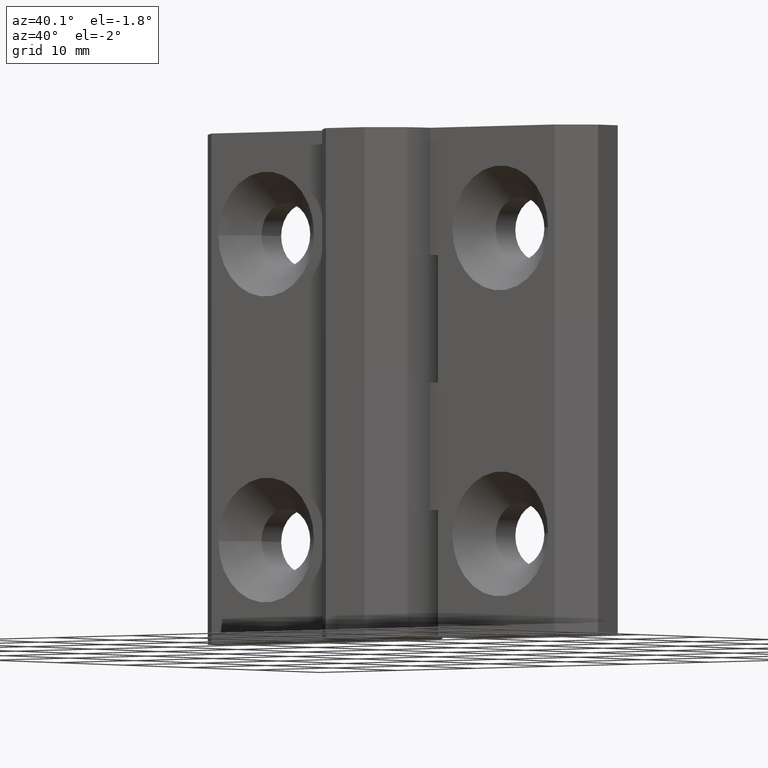
[diagram: clean part render]
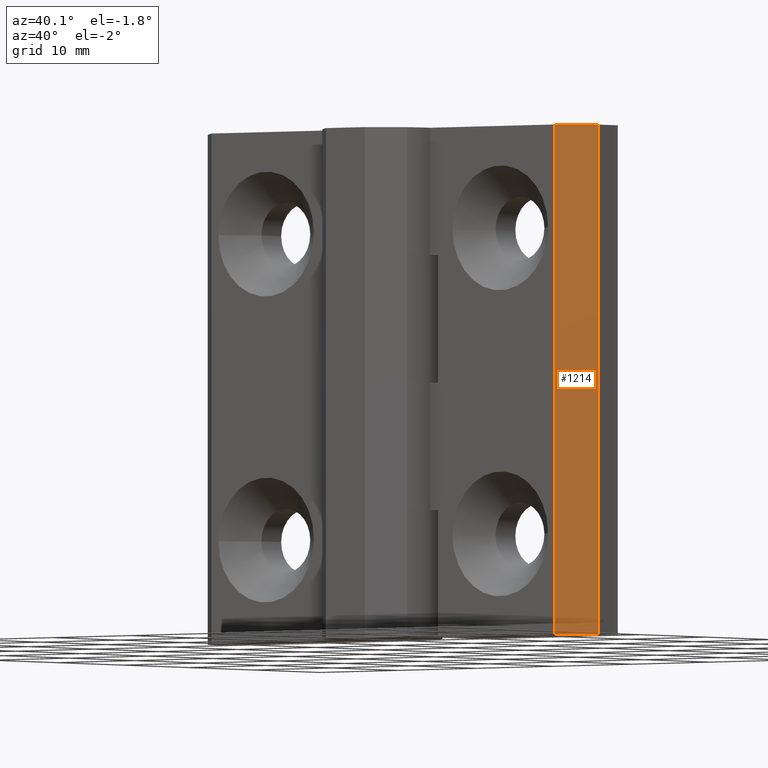
[diagram: same view with one face highlighted and labeled with its STEP entity id]
A machine part, auxiliary view. The second image highlights one B-rep face of the part: STEP entity #1214.
In plain terms, the highlighted planar face has unit normal (0.7071, -0.7071, 0).
Its self-contained STEP definition (entity closure, byte-faithful):
#159=FACE_OUTER_BOUND('',#240,.T.);
#240=EDGE_LOOP('',(#970,#971,#972,#973));
#315=LINE('',#1767,#437);
#351=LINE('',#1874,#473);
#353=LINE('',#1881,#475);
#354=LINE('',#1883,#476);
#437=VECTOR('',#1407,4.24264068711929);
#473=VECTOR('',#1513,50.);
#475=VECTOR('',#1523,4.24264068711929);
#476=VECTOR('',#1526,50.);
#555=VERTEX_POINT('',#1764);
#556=VERTEX_POINT('',#1766);
#592=VERTEX_POINT('',#1872);
#593=VERTEX_POINT('',#1879);
#676=EDGE_CURVE('',#555,#556,#315,.T.);
#729=EDGE_CURVE('',#592,#555,#351,.T.);
#731=EDGE_CURVE('',#593,#592,#353,.T.);
#732=EDGE_CURVE('',#556,#593,#354,.T.);
#970=ORIENTED_EDGE('',*,*,#732,.F.);
#971=ORIENTED_EDGE('',*,*,#676,.F.);
#972=ORIENTED_EDGE('',*,*,#729,.F.);
#973=ORIENTED_EDGE('',*,*,#731,.F.);
#1160=PLANE('',#1303);
#1214=ADVANCED_FACE('',(#159),#1160,.T.);
#1303=AXIS2_PLACEMENT_3D('',#1884,#1527,#1528);
#1407=DIRECTION('',(0.707106781186548,0.707106781186547,0.));
#1513=DIRECTION('',(0.,0.,1.));
#1523=DIRECTION('',(-0.707106781186548,-0.707106781186547,0.));
#1526=DIRECTION('',(0.,0.,-1.));
#1527=DIRECTION('center_axis',(0.707106781186547,-0.707106781186548,0.));
#1528=DIRECTION('ref_axis',(0.707106781186548,0.707106781186547,0.));
#1764=CARTESIAN_POINT('',(22.,0.299999999999987,25.));
#1766=CARTESIAN_POINT('',(25.,3.29999999999999,25.));
#1767=CARTESIAN_POINT('',(25.,3.29999999999999,25.));
#1872=CARTESIAN_POINT('',(22.,0.299999999999987,-25.));
#1874=CARTESIAN_POINT('',(22.,0.299999999999987,0.));
#1879=CARTESIAN_POINT('',(25.,3.29999999999999,-25.));
#1881=CARTESIAN_POINT('',(25.,3.29999999999999,-25.));
#1883=CARTESIAN_POINT('',(25.,3.29999999999999,0.));
#1884=CARTESIAN_POINT('Origin',(22.,0.299999999999986,0.));